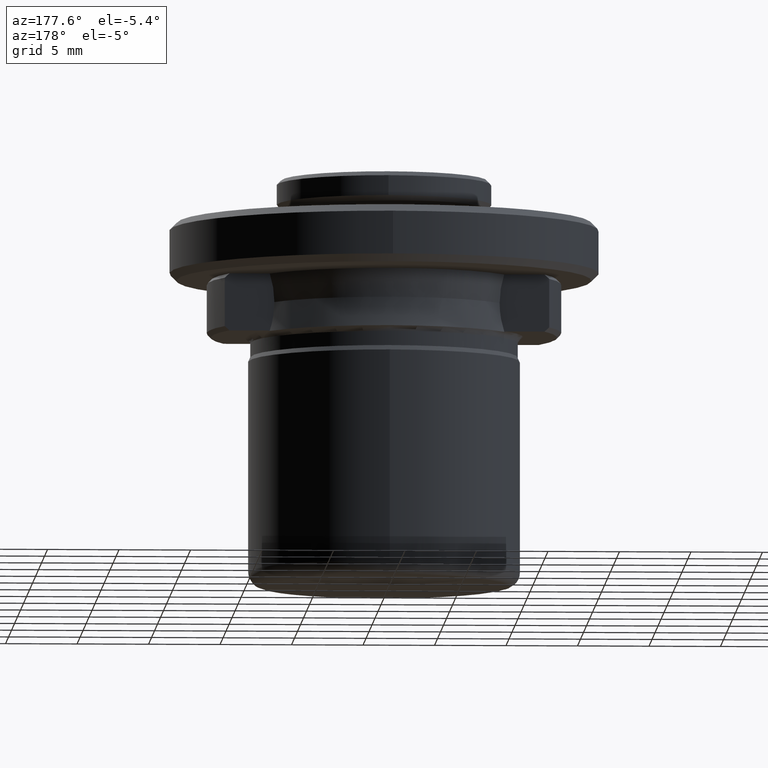
[diagram: clean part render]
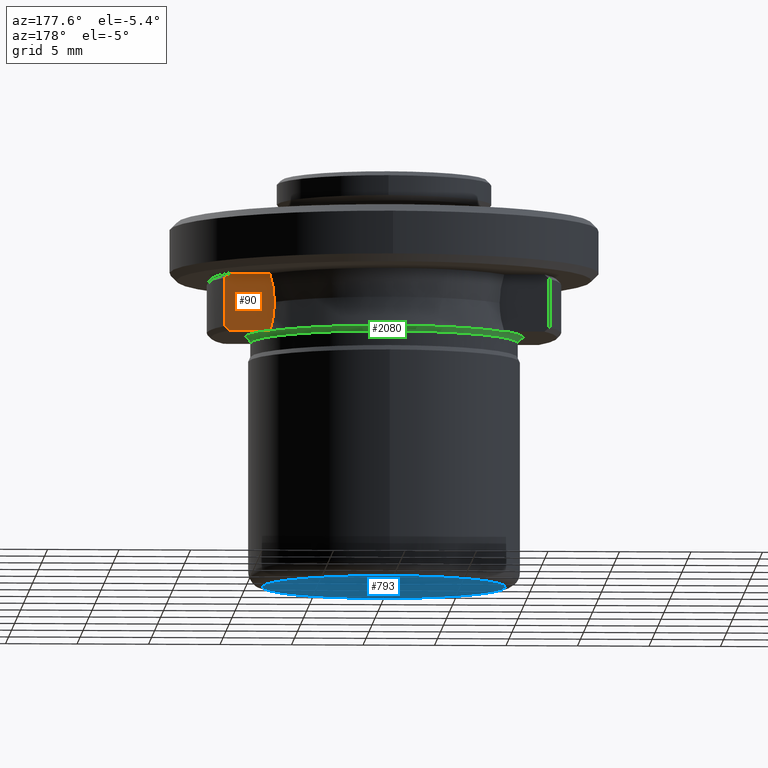
[diagram: same view with three faces highlighted in distinct colors, each labeled with its STEP entity id]
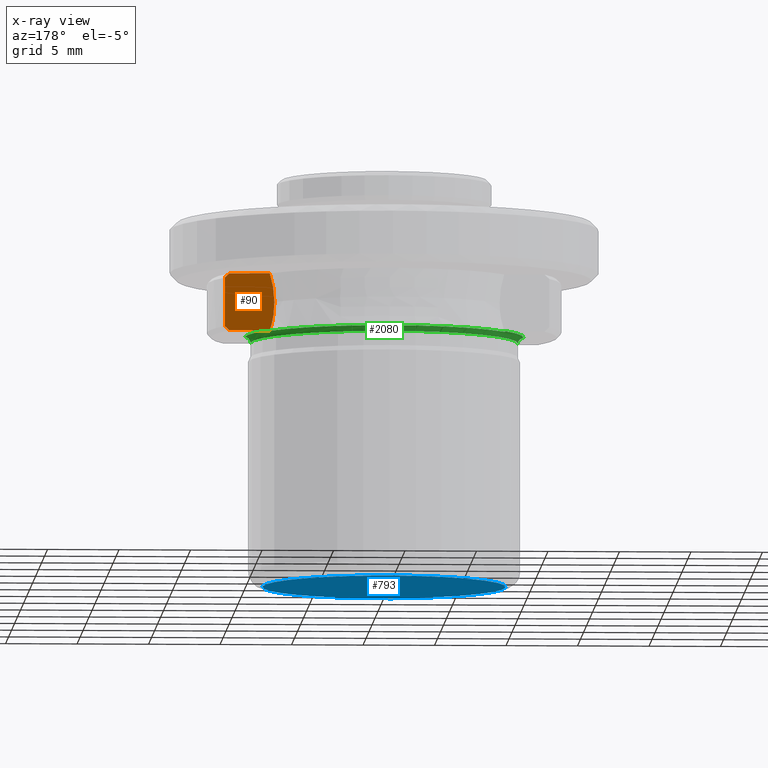
[diagram: x-ray of the same camera — body ghosted, the three highlighted faces saturated]
A machine part, auxiliary view with three faces highlighted in distinct colors.
The next image is the same camera in x-ray (body ghosted, the three faces saturated) — at least one of them is partly hidden behind the body in this view.
Their STEP definitions:

[orange] entity #90 — the highlighted planar face has unit normal (0, -1, 0).
#10 = EDGE_CURVE ( 'NONE', #11, #642, #946, .T. ) ;
#11 = VERTEX_POINT ( 'NONE', #199 ) ;
#31 = CARTESIAN_POINT ( 'NONE',  ( 7.877112415290536500, 5.000000000000000000, 6.061559035861058900 ) ) ;
#33 = VERTEX_POINT ( 'NONE', #1376 ) ;
#39 = VECTOR ( 'NONE', #102, 1000.000000000000000 ) ;
#45 = ORIENTED_EDGE ( 'NONE', *, *, #1890, .F. ) ;
#76 = CARTESIAN_POINT ( 'NONE',  ( 0.0000000000000000000, 5.000000006628000400, 8.750000000000000000 ) ) ;
#90 = ADVANCED_FACE ( 'NONE', ( #840 ), #1550, .F. ) ;
#102 = DIRECTION ( 'NONE',  ( -0.0000000000000000000, -0.0000000000000000000, 1.000000000000000000 ) ) ;
#199 = CARTESIAN_POINT ( 'NONE',  ( 8.196975814546172900, 5.000000003314001500, 8.750000000509832200 ) ) ;
#203 = CARTESIAN_POINT ( 'NONE',  ( 7.877112416672512800, 4.999999997048595500, 6.749999999319589600 ) ) ;
#207 = ORIENTED_EDGE ( 'NONE', *, *, #1287, .F. ) ;
#289 = CARTESIAN_POINT ( 'NONE',  ( 8.259008784446502100, 5.000000000000000000, 4.741517755132616000 ) ) ;
#436 = B_SPLINE_CURVE_WITH_KNOTS ( 'NONE', 3,
 ( #1450, #289, #1620, #614 ),
 .UNSPECIFIED., .F., .F.,
 ( 4, 4 ),
 ( 0.0000000000000000000, 0.0001669516242611762100 ),
 .UNSPECIFIED. ) ;
#473 = LINE ( 'NONE', #619, #39 ) ;
#492 = VECTOR ( 'NONE', #1711, 1000.000000000000000 ) ;
#506 = ORIENTED_EDGE ( 'NONE', *, *, #604, .F. ) ;
#526 = CARTESIAN_POINT ( 'NONE',  ( 7.990553860150956900, 5.000000000000000000, 5.378188955162049600 ) ) ;
#541 = B_SPLINE_CURVE_WITH_KNOTS ( 'NONE', 3,
 ( #2049, #867, #1205, #203 ),
 .UNSPECIFIED., .F., .F.,
 ( 4, 4 ),
 ( 2.261502033258373100E-013, 0.002031991267083054800 ),
 .UNSPECIFIED. ) ;
#549 = EDGE_CURVE ( 'NONE', #642, #1302, #1436, .T. ) ;
#574 = ORIENTED_EDGE ( 'NONE', *, *, #10, .T. ) ;
#604 = EDGE_CURVE ( 'NONE', #1350, #1302, #473, .T. ) ;
#614 = CARTESIAN_POINT ( 'NONE',  ( 8.370334521264656000, 4.999999999999999100, 4.749999999889213100 ) ) ;
#619 = CARTESIAN_POINT ( 'NONE',  ( 11.34724636200000000, 5.000000000000000000, 6.725040224999999900 ) ) ;
#642 = VERTEX_POINT ( 'NONE', #1637 ) ;
#678 = ORIENTED_EDGE ( 'NONE', *, *, #2120, .T. ) ;
#686 = CARTESIAN_POINT ( 'NONE',  ( 11.23782482202214300, 5.000000000000000000, 4.949868292623029300 ) ) ;
#687 = CARTESIAN_POINT ( 'NONE',  ( 7.877112416672512800, 4.999999997048595500, 6.749999999319589600 ) ) ;
#717 = VERTEX_POINT ( 'NONE', #1487 ) ;
#749 = CARTESIAN_POINT ( 'NONE',  ( 11.12828599823895500, 5.000000000000000000, 8.650135423148148200 ) ) ;
#771 = VERTEX_POINT ( 'NONE', #1505 ) ;
#788 = B_SPLINE_CURVE_WITH_KNOTS ( 'NONE', 3,
 ( #687, #31, #526, #1705 ),
 .UNSPECIFIED., .F., .F.,
 ( 4, 4 ),
 ( 8.673617379884035500E-019, 0.002058707678565891700 ),
 .UNSPECIFIED. ) ;
#840 = FACE_OUTER_BOUND ( 'NONE', #1653, .T. ) ;
#858 = CARTESIAN_POINT ( 'NONE',  ( 11.12828599698353000, 5.000000000124183300, 4.849864575581147400 ) ) ;
#867 = CARTESIAN_POINT ( 'NONE',  ( 7.987554438062074000, 5.000000000000002700, 8.103832764914706400 ) ) ;
#919 = EDGE_CURVE ( 'NONE', #11, #717, #541, .T. ) ;
#925 = CARTESIAN_POINT ( 'NONE',  ( 11.34724636200171400, 5.000000000000000000, 8.450000000001548300 ) ) ;
#946 = LINE ( 'NONE', #76, #492 ) ;
#1034 = CARTESIAN_POINT ( 'NONE',  ( 11.34724636200171400, 5.000000000000000000, 5.049999999998430400 ) ) ;
#1129 = CARTESIAN_POINT ( 'NONE',  ( 11.34724636200171400, 5.000000000000000000, 8.450000000001548300 ) ) ;
#1149 = DIRECTION ( 'NONE',  ( 0.0000000000000000000, 0.0000000000000000000, -1.000000000000000000 ) ) ;
#1155 = EDGE_CURVE ( 'NONE', #1158, #1350, #1320, .T. ) ;
#1158 = VERTEX_POINT ( 'NONE', #1365 ) ;
#1205 = CARTESIAN_POINT ( 'NONE',  ( 7.877112415001549000, 5.000000000000003600, 7.429352586418210600 ) ) ;
#1256 = VECTOR ( 'NONE', #1774, 1000.000000000000000 ) ;
#1287 = EDGE_CURVE ( 'NONE', #771, #33, #436, .T. ) ;
#1302 = VERTEX_POINT ( 'NONE', #1129 ) ;
#1316 = DIRECTION ( 'NONE',  ( 0.0000000000000000000, -1.000000000000000000, 0.0000000000000000000 ) ) ;
#1320 = B_SPLINE_CURVE_WITH_KNOTS ( 'NONE', 3,
 ( #2041, #858, #686, #1034 ),
 .UNSPECIFIED., .F., .F.,
 ( 4, 4 ),
 ( 2.419956629610929600E-013, 0.0004449661666843174800 ),
 .UNSPECIFIED. ) ;
#1350 = VERTEX_POINT ( 'NONE', #1467 ) ;
#1365 = CARTESIAN_POINT ( 'NONE',  ( 11.01862060314533100, 4.999999999999999100, 4.749999999837141800 ) ) ;
#1376 = CARTESIAN_POINT ( 'NONE',  ( 8.370334521264656000, 4.999999999999999100, 4.749999999889213100 ) ) ;
#1384 = AXIS2_PLACEMENT_3D ( 'NONE', #1385, #1316, #1149 ) ;
#1385 = CARTESIAN_POINT ( 'NONE',  ( 7.846961496000001400, 5.000000000000000000, 8.750000000000000000 ) ) ;
#1420 = ORIENTED_EDGE ( 'NONE', *, *, #919, .F. ) ;
#1436 = B_SPLINE_CURVE_WITH_KNOTS ( 'NONE', 3,
 ( #1757, #749, #1933, #925 ),
 .UNSPECIFIED., .F., .F.,
 ( 4, 4 ),
 ( 0.0000000000000000000, 0.0004449661644237766600 ),
 .UNSPECIFIED. ) ;
#1450 = CARTESIAN_POINT ( 'NONE',  ( 8.205382974800770100, 5.000000000000000900, 4.724235040159770800 ) ) ;
#1467 = CARTESIAN_POINT ( 'NONE',  ( 11.34724636200171400, 5.000000000000000000, 5.049999999998430400 ) ) ;
#1487 = CARTESIAN_POINT ( 'NONE',  ( 7.877112416672512800, 4.999999997048595500, 6.749999999319589600 ) ) ;
#1505 = CARTESIAN_POINT ( 'NONE',  ( 8.205382974800770100, 5.000000000000000900, 4.724235040159770800 ) ) ;
#1550 = PLANE ( 'NONE',  #1384 ) ;
#1596 = CARTESIAN_POINT ( 'NONE',  ( 10.23516726099999900, 5.000000000000000000, 4.750000000000000000 ) ) ;
#1620 = CARTESIAN_POINT ( 'NONE',  ( 8.314009200938841100, 5.000000000000000000, 4.749999999677823900 ) ) ;
#1637 = CARTESIAN_POINT ( 'NONE',  ( 11.01862060256122100, 5.000000003314000600, 8.749999999325346800 ) ) ;
#1653 = EDGE_LOOP ( 'NONE', ( #506, #1897, #678, #207, #45, #1420, #574, #2150 ) ) ;
#1705 = CARTESIAN_POINT ( 'NONE',  ( 8.205382974800770100, 5.000000000000000900, 4.724235040159770800 ) ) ;
#1711 = DIRECTION ( 'NONE',  ( 1.000000000000000000, 0.0000000000000000000, 0.0000000000000000000 ) ) ;
#1757 = CARTESIAN_POINT ( 'NONE',  ( 11.01862060256122100, 5.000000003314000600, 8.749999999325346800 ) ) ;
#1774 = DIRECTION ( 'NONE',  ( -1.000000000000000000, -0.0000000000000000000, -0.0000000000000000000 ) ) ;
#1890 = EDGE_CURVE ( 'NONE', #717, #771, #788, .T. ) ;
#1897 = ORIENTED_EDGE ( 'NONE', *, *, #1155, .F. ) ;
#1933 = CARTESIAN_POINT ( 'NONE',  ( 11.23782482281900400, 5.000000000000000000, 8.550131706648159000 ) ) ;
#2041 = CARTESIAN_POINT ( 'NONE',  ( 11.01862060314533100, 4.999999999999999100, 4.749999999837141800 ) ) ;
#2049 = CARTESIAN_POINT ( 'NONE',  ( 8.196975814546172900, 5.000000003314001500, 8.750000000509832200 ) ) ;
#2097 = LINE ( 'NONE', #1596, #1256 ) ;
#2120 = EDGE_CURVE ( 'NONE', #1158, #33, #2097, .T. ) ;
#2150 = ORIENTED_EDGE ( 'NONE', *, *, #549, .T. ) ;

[blue] entity #793 — the highlighted planar face has unit normal (0, 0, 1).
#1 = DIRECTION ( 'NONE',  ( -0.0000000000000000000, -0.0000000000000000000, -1.000000000000000000 ) ) ;
#108 = AXIS2_PLACEMENT_3D ( 'NONE', #1007, #1, #166 ) ;
#166 = DIRECTION ( 'NONE',  ( 1.000000000000000000, 0.0000000000000000000, 0.0000000000000000000 ) ) ;
#205 = AXIS2_PLACEMENT_3D ( 'NONE', #1676, #340, #1514 ) ;
#231 = EDGE_CURVE ( 'NONE', #1697, #1165, #2028, .T. ) ;
#340 = DIRECTION ( 'NONE',  ( 0.0000000000000000000, 0.0000000000000000000, 1.000000000000000000 ) ) ;
#363 = CARTESIAN_POINT ( 'NONE',  ( 8.500000000000000000, 2.364620801796248300E-016, -12.75000000000000200 ) ) ;
#383 = EDGE_CURVE ( 'NONE', #1165, #1697, #399, .T. ) ;
#399 = CIRCLE ( 'NONE', #2020, 8.500000000000000000 ) ;
#793 = ADVANCED_FACE ( 'NONE', ( #1500 ), #1849, .F. ) ;
#814 = EDGE_LOOP ( 'NONE', ( #1871, #1026 ) ) ;
#849 = DIRECTION ( 'NONE',  ( 1.000000000000000000, 0.0000000000000000000, 0.0000000000000000000 ) ) ;
#947 = CARTESIAN_POINT ( 'NONE',  ( 0.0000000000000000000, 2.364620801796248300E-016, -12.75000000000000200 ) ) ;
#1007 = CARTESIAN_POINT ( 'NONE',  ( 0.0000000000000000000, 2.364620801796248300E-016, -12.75000000000000200 ) ) ;
#1026 = ORIENTED_EDGE ( 'NONE', *, *, #231, .T. ) ;
#1165 = VERTEX_POINT ( 'NONE', #363 ) ;
#1306 = DIRECTION ( 'NONE',  ( -0.0000000000000000000, -0.0000000000000000000, -1.000000000000000000 ) ) ;
#1481 = CARTESIAN_POINT ( 'NONE',  ( -8.500000000000000000, 1.338644199412242400E-015, -12.75000000000000200 ) ) ;
#1500 = FACE_OUTER_BOUND ( 'NONE', #814, .T. ) ;
#1514 = DIRECTION ( 'NONE',  ( 1.000000000000000000, 0.0000000000000000000, 0.0000000000000000000 ) ) ;
#1676 = CARTESIAN_POINT ( 'NONE',  ( -8.450200000000000600, -8.450200000000000600, -12.75000000000000200 ) ) ;
#1697 = VERTEX_POINT ( 'NONE', #1481 ) ;
#1849 = PLANE ( 'NONE',  #205 ) ;
#1871 = ORIENTED_EDGE ( 'NONE', *, *, #383, .T. ) ;
#2020 = AXIS2_PLACEMENT_3D ( 'NONE', #947, #1306, #849 ) ;
#2028 = CIRCLE ( 'NONE', #108, 8.500000000000000000 ) ;

[green] entity #2080 — the highlighted toroidal blend (fillet) surface has major radius 9.75 mm and minor (blend) radius 0.4 mm.
#33 = VERTEX_POINT ( 'NONE', #1376 ) ;
#82 = EDGE_CURVE ( 'NONE', #911, #1298, #388, .T. ) ;
#138 = CARTESIAN_POINT ( 'NONE',  ( 0.0000000000000000000, 0.0000000000000000000, 4.724235039728594800 ) ) ;
#160 = EDGE_CURVE ( 'NONE', #452, #33, #341, .T. ) ;
#168 = ORIENTED_EDGE ( 'NONE', *, *, #1648, .F. ) ;
#172 = DIRECTION ( 'NONE',  ( 0.0000000000000000000, -1.000000000000000000, 0.0000000000000000000 ) ) ;
#289 = CARTESIAN_POINT ( 'NONE',  ( 8.259008784446502100, 5.000000000000000000, 4.741517755132616000 ) ) ;
#308 = AXIS2_PLACEMENT_3D ( 'NONE', #138, #1315, #309 ) ;
#309 = DIRECTION ( 'NONE',  ( 0.0000000000000000000, -1.000000000000000000, 9.026779161851814800E-017 ) ) ;
#341 = CIRCLE ( 'NONE', #1605, 9.750000000146760800 ) ;
#384 = AXIS2_PLACEMENT_3D ( 'NONE', #1864, #853, #2033 ) ;
#388 = CIRCLE ( 'NONE', #822, 0.4000000002154814300 ) ;
#409 = TOROIDAL_SURFACE ( 'NONE', #1610, 9.750000000326270600, 0.4000000002154814300 ) ;
#436 = B_SPLINE_CURVE_WITH_KNOTS ( 'NONE', 3,
 ( #1450, #289, #1620, #614 ),
 .UNSPECIFIED., .F., .F.,
 ( 4, 4 ),
 ( 0.0000000000000000000, 0.0001669516242611762100 ),
 .UNSPECIFIED. ) ;
#452 = VERTEX_POINT ( 'NONE', #2093 ) ;
#462 = CIRCLE ( 'NONE', #384, 9.350000000108330800 ) ;
#516 = DIRECTION ( 'NONE',  ( -0.0000000000000000000, 0.0000000000000000000, -1.000000000000000000 ) ) ;
#534 = DIRECTION ( 'NONE',  ( -1.000000000000000000, 1.224646799147352200E-016, 0.0000000000000000000 ) ) ;
#567 = EDGE_CURVE ( 'NONE', #1065, #1645, #1624, .T. ) ;
#609 = AXIS2_PLACEMENT_3D ( 'NONE', #1525, #516, #1696 ) ;
#614 = CARTESIAN_POINT ( 'NONE',  ( 8.370334521264656000, 4.999999999999999100, 4.749999999889213100 ) ) ;
#771 = VERTEX_POINT ( 'NONE', #1505 ) ;
#791 = EDGE_CURVE ( 'NONE', #452, #1011, #1950, .T. ) ;
#820 = DIRECTION ( 'NONE',  ( -0.0000000000000000000, 0.0000000000000000000, 1.000000000000000000 ) ) ;
#822 = AXIS2_PLACEMENT_3D ( 'NONE', #1231, #1183, #534 ) ;
#853 = DIRECTION ( 'NONE',  ( 0.0000000000000000000, -0.0000000000000000000, -1.000000000000000000 ) ) ;
#895 = ORIENTED_EDGE ( 'NONE', *, *, #82, .F. ) ;
#896 = ORIENTED_EDGE ( 'NONE', *, *, #791, .T. ) ;
#911 = VERTEX_POINT ( 'NONE', #1029 ) ;
#938 = EDGE_LOOP ( 'NONE', ( #895, #1162, #2115, #168, #1943, #1430, #896, #1869 ) ) ;
#960 = CARTESIAN_POINT ( 'NONE',  ( -9.350000000108330800, 1.145044757216041900E-015, 4.349999999879580400 ) ) ;
#1011 = VERTEX_POINT ( 'NONE', #1741 ) ;
#1029 = CARTESIAN_POINT ( 'NONE',  ( -9.750000000561367800, 1.194030629237417500E-015, 4.749999999889213100 ) ) ;
#1065 = VERTEX_POINT ( 'NONE', #1904 ) ;
#1100 = CARTESIAN_POINT ( 'NONE',  ( -8.314009201291112200, 5.000000001154024400, 4.749999998633676900 ) ) ;
#1138 = EDGE_CURVE ( 'NONE', #1298, #1011, #462, .T. ) ;
#1148 = EDGE_CURVE ( 'NONE', #911, #1065, #1985, .T. ) ;
#1162 = ORIENTED_EDGE ( 'NONE', *, *, #1148, .T. ) ;
#1182 = CARTESIAN_POINT ( 'NONE',  ( 9.750000000326270600, 0.0000000000000000000, 4.349999999673730900 ) ) ;
#1183 = DIRECTION ( 'NONE',  ( 1.224646799147353200E-016, 1.000000000000000000, 0.0000000000000000000 ) ) ;
#1231 = CARTESIAN_POINT ( 'NONE',  ( -9.750000000326270600, 1.194030629208625900E-015, 4.349999999673730900 ) ) ;
#1243 = CARTESIAN_POINT ( 'NONE',  ( 0.0000000000000000000, 0.0000000000000000000, 4.349999999673730900 ) ) ;
#1270 = CARTESIAN_POINT ( 'NONE',  ( -8.370334521211765000, 4.999999999999999100, 4.749999999889213100 ) ) ;
#1287 = EDGE_CURVE ( 'NONE', #771, #33, #436, .T. ) ;
#1298 = VERTEX_POINT ( 'NONE', #960 ) ;
#1312 = FACE_OUTER_BOUND ( 'NONE', #938, .T. ) ;
#1315 = DIRECTION ( 'NONE',  ( 0.0000000000000000000, 9.026779162063304700E-017, 1.000000000000000000 ) ) ;
#1349 = DIRECTION ( 'NONE',  ( 0.0000000000000000000, 0.0000000000000000000, -1.000000000000000000 ) ) ;
#1376 = CARTESIAN_POINT ( 'NONE',  ( 8.370334521264656000, 4.999999999999999100, 4.749999999889213100 ) ) ;
#1430 = ORIENTED_EDGE ( 'NONE', *, *, #160, .F. ) ;
#1433 = CARTESIAN_POINT ( 'NONE',  ( -8.205382973227298000, 5.000000000000000900, 4.724235039559845400 ) ) ;
#1450 = CARTESIAN_POINT ( 'NONE',  ( 8.205382974800770100, 5.000000000000000900, 4.724235040159770800 ) ) ;
#1505 = CARTESIAN_POINT ( 'NONE',  ( 8.205382974800770100, 5.000000000000000900, 4.724235040159770800 ) ) ;
#1525 = CARTESIAN_POINT ( 'NONE',  ( 0.0000000000000000000, 0.0000000000000000000, 4.749999999889213100 ) ) ;
#1605 = AXIS2_PLACEMENT_3D ( 'NONE', #1828, #820, #2164 ) ;
#1610 = AXIS2_PLACEMENT_3D ( 'NONE', #1243, #1740, #1751 ) ;
#1620 = CARTESIAN_POINT ( 'NONE',  ( 8.314009200938841100, 5.000000000000000000, 4.749999999677823900 ) ) ;
#1624 = B_SPLINE_CURVE_WITH_KNOTS ( 'NONE', 3,
 ( #1270, #1100, #2108, #1433 ),
 .UNSPECIFIED., .F., .F.,
 ( 4, 4 ),
 ( 0.0000000000000000000, 0.0001669516244480452800 ),
 .UNSPECIFIED. ) ;
#1645 = VERTEX_POINT ( 'NONE', #1973 ) ;
#1648 = EDGE_CURVE ( 'NONE', #771, #1645, #1898, .T. ) ;
#1696 = DIRECTION ( 'NONE',  ( 1.000000000000000000, 0.0000000000000000000, 0.0000000000000000000 ) ) ;
#1740 = DIRECTION ( 'NONE',  ( -0.0000000000000000000, 0.0000000000000000000, 1.000000000000000000 ) ) ;
#1741 = CARTESIAN_POINT ( 'NONE',  ( 9.350000000108330800, 0.0000000000000000000, 4.349999999879580400 ) ) ;
#1751 = DIRECTION ( 'NONE',  ( 1.000000000000000000, 0.0000000000000000000, 0.0000000000000000000 ) ) ;
#1828 = CARTESIAN_POINT ( 'NONE',  ( 0.0000000000000000000, 0.0000000000000000000, 4.749999999889213100 ) ) ;
#1864 = CARTESIAN_POINT ( 'NONE',  ( 0.0000000000000000000, 0.0000000000000000000, 4.349999999879580400 ) ) ;
#1869 = ORIENTED_EDGE ( 'NONE', *, *, #1138, .F. ) ;
#1898 = CIRCLE ( 'NONE', #308, 9.608762133607653400 ) ;
#1904 = CARTESIAN_POINT ( 'NONE',  ( -8.370334521211765000, 4.999999999999999100, 4.749999999889213100 ) ) ;
#1943 = ORIENTED_EDGE ( 'NONE', *, *, #1287, .T. ) ;
#1950 = CIRCLE ( 'NONE', #2051, 0.4000000002154814300 ) ;
#1973 = CARTESIAN_POINT ( 'NONE',  ( -8.205382973227298000, 5.000000000000000900, 4.724235039559845400 ) ) ;
#1985 = CIRCLE ( 'NONE', #609, 9.750000000796468700 ) ;
#2033 = DIRECTION ( 'NONE',  ( -1.000000000000000000, 0.0000000000000000000, 0.0000000000000000000 ) ) ;
#2051 = AXIS2_PLACEMENT_3D ( 'NONE', #1182, #172, #1349 ) ;
#2080 = ADVANCED_FACE ( 'NONE', ( #1312 ), #409, .F. ) ;
#2093 = CARTESIAN_POINT ( 'NONE',  ( 9.750000000236514800, 0.0000000000000000000, 4.749999999889213100 ) ) ;
#2108 = CARTESIAN_POINT ( 'NONE',  ( -8.259008784567335200, 5.000000000000000000, 4.741517755171558200 ) ) ;
#2115 = ORIENTED_EDGE ( 'NONE', *, *, #567, .T. ) ;
#2164 = DIRECTION ( 'NONE',  ( 1.000000000000000000, 0.0000000000000000000, 0.0000000000000000000 ) ) ;